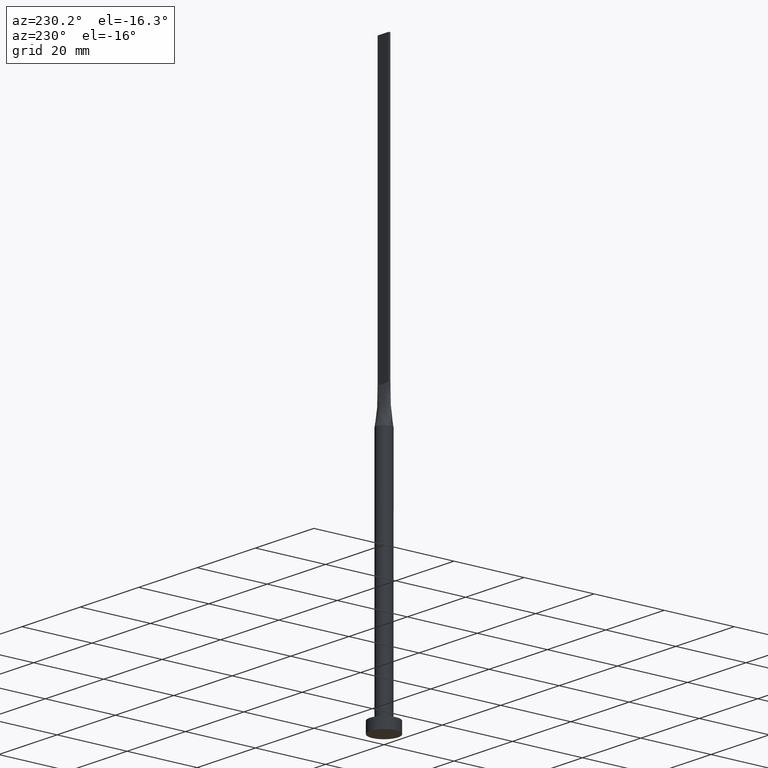
[diagram: clean part render]
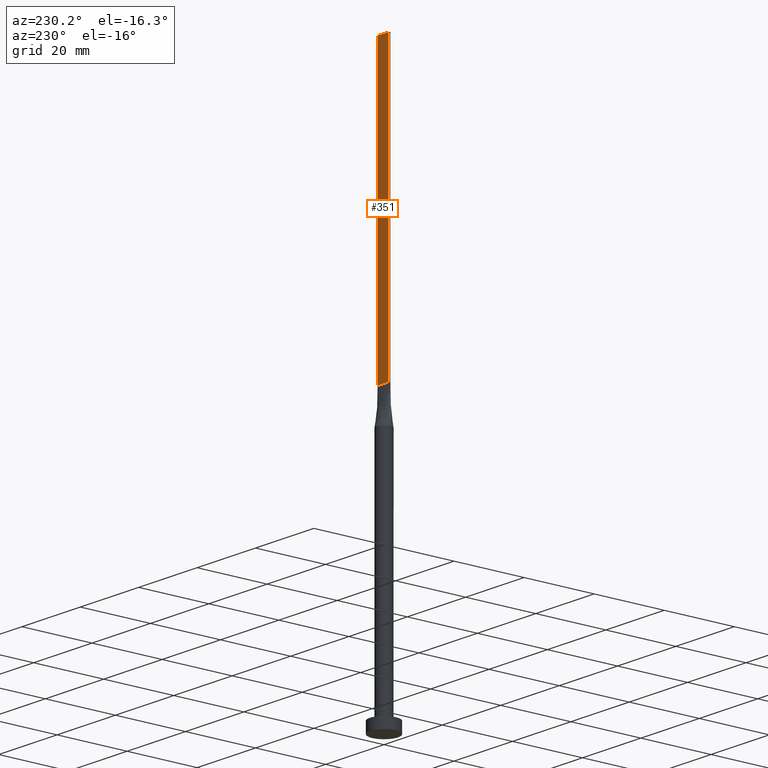
[diagram: same view with one face highlighted and labeled with its STEP entity id]
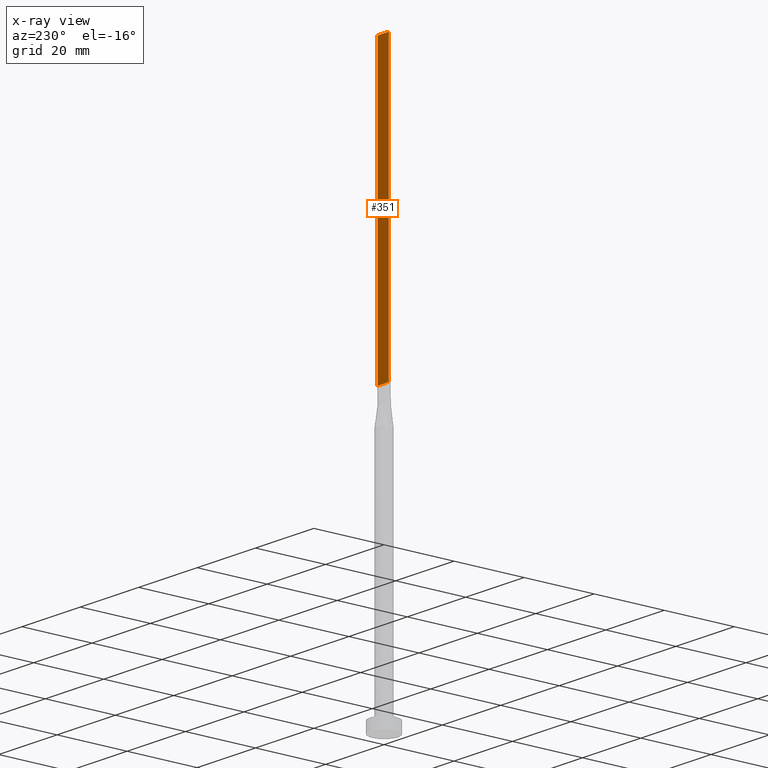
[diagram: x-ray of the same camera — body ghosted, the highlighted face saturated]
A machine part, auxiliary view. The second image highlights one B-rep face of the part: STEP entity #351.
The next image is the same camera in x-ray: the body ghosted, the highlighted face saturated — about 0% of this face is hidden behind the body in this view.
In plain terms, the highlighted planar face has unit normal (0, -1, 0).
Its self-contained STEP definition (entity closure, byte-faithful):
#7 = EDGE_CURVE ( 'NONE', #393, #75, #578, .T. ) ;
#17 = ORIENTED_EDGE ( 'NONE', *, *, #187, .F. ) ;
#55 = ORIENTED_EDGE ( 'NONE', *, *, #272, .T. ) ;
#75 = VERTEX_POINT ( 'NONE', #474 ) ;
#113 = VECTOR ( 'NONE', #359, 1000.000000000000000 ) ;
#114 = PLANE ( 'NONE',  #321 ) ;
#136 = VECTOR ( 'NONE', #171, 1000.000000000000000 ) ;
#142 = LINE ( 'NONE', #316, #499 ) ;
#157 = VECTOR ( 'NONE', #266, 1000.000000000000000 ) ;
#171 = DIRECTION ( 'NONE',  ( -1.000000000000000000, 0.000000000000000000, 0.000000000000000000 ) ) ;
#187 = EDGE_CURVE ( 'NONE', #75, #277, #485, .T. ) ;
#201 = EDGE_LOOP ( 'NONE', ( #480, #17, #227, #55 ) ) ;
#208 = CARTESIAN_POINT ( 'NONE',  ( 1.899999999999999911, 0.2500000000000002220, 80.00000000000000000 ) ) ;
#227 = ORIENTED_EDGE ( 'NONE', *, *, #7, .F. ) ;
#266 = DIRECTION ( 'NONE',  ( -0.000000000000000000, -0.000000000000000000, -1.000000000000000000 ) ) ;
#270 = CARTESIAN_POINT ( 'NONE',  ( -1.899999999999999911, 0.2500000000000002220, 80.00000000000000000 ) ) ;
#272 = EDGE_CURVE ( 'NONE', #393, #348, #142, .T. ) ;
#277 = VERTEX_POINT ( 'NONE', #401 ) ;
#281 = DIRECTION ( 'NONE',  ( -0.000000000000000000, -0.000000000000000000, -1.000000000000000000 ) ) ;
#316 = CARTESIAN_POINT ( 'NONE',  ( 1.899999999999999911, 0.2500000000000002220, 160.0000000000000000 ) ) ;
#321 = AXIS2_PLACEMENT_3D ( 'NONE', #338, #568, #345 ) ;
#338 = CARTESIAN_POINT ( 'NONE',  ( 1.899999999999999911, 0.2500000000000002220, 160.0000000000000000 ) ) ;
#345 = DIRECTION ( 'NONE',  ( 0.000000000000000000, -0.000000000000000000, -1.000000000000000000 ) ) ;
#348 = VERTEX_POINT ( 'NONE', #208 ) ;
#351 = ADVANCED_FACE ( 'NONE', ( #382 ), #114, .F. ) ;
#359 = DIRECTION ( 'NONE',  ( -1.000000000000000000, -0.000000000000000000, -0.000000000000000000 ) ) ;
#360 = CARTESIAN_POINT ( 'NONE',  ( -1.899999999999999911, 0.2500000000000002220, 160.0000000000000000 ) ) ;
#382 = FACE_OUTER_BOUND ( 'NONE', #201, .T. ) ;
#393 = VERTEX_POINT ( 'NONE', #548 ) ;
#401 = CARTESIAN_POINT ( 'NONE',  ( -1.899999999999999911, 0.2500000000000002220, 80.00000000000000000 ) ) ;
#434 = CARTESIAN_POINT ( 'NONE',  ( 1.899999999999999911, 0.2500000000000002220, 160.0000000000000000 ) ) ;
#458 = LINE ( 'NONE', #270, #113 ) ;
#474 = CARTESIAN_POINT ( 'NONE',  ( -1.899999999999999911, 0.2500000000000002220, 160.0000000000000000 ) ) ;
#480 = ORIENTED_EDGE ( 'NONE', *, *, #509, .T. ) ;
#485 = LINE ( 'NONE', #360, #157 ) ;
#499 = VECTOR ( 'NONE', #281, 1000.000000000000000 ) ;
#509 = EDGE_CURVE ( 'NONE', #348, #277, #458, .T. ) ;
#548 = CARTESIAN_POINT ( 'NONE',  ( 1.899999999999999911, 0.2500000000000002220, 160.0000000000000000 ) ) ;
#568 = DIRECTION ( 'NONE',  ( 0.000000000000000000, -1.000000000000000000, 0.000000000000000000 ) ) ;
#578 = LINE ( 'NONE', #434, #136 ) ;